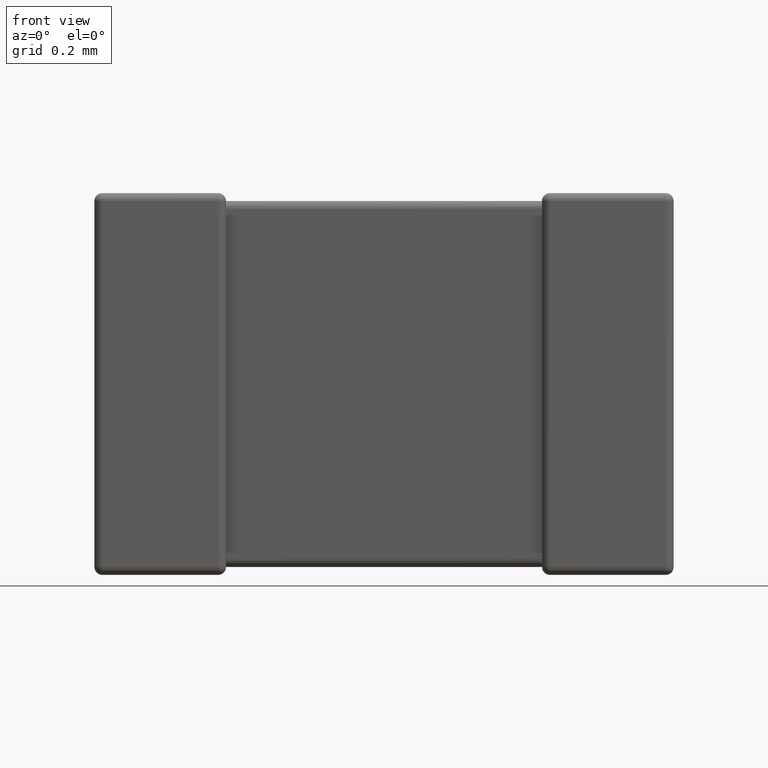
[diagram: clean part render]
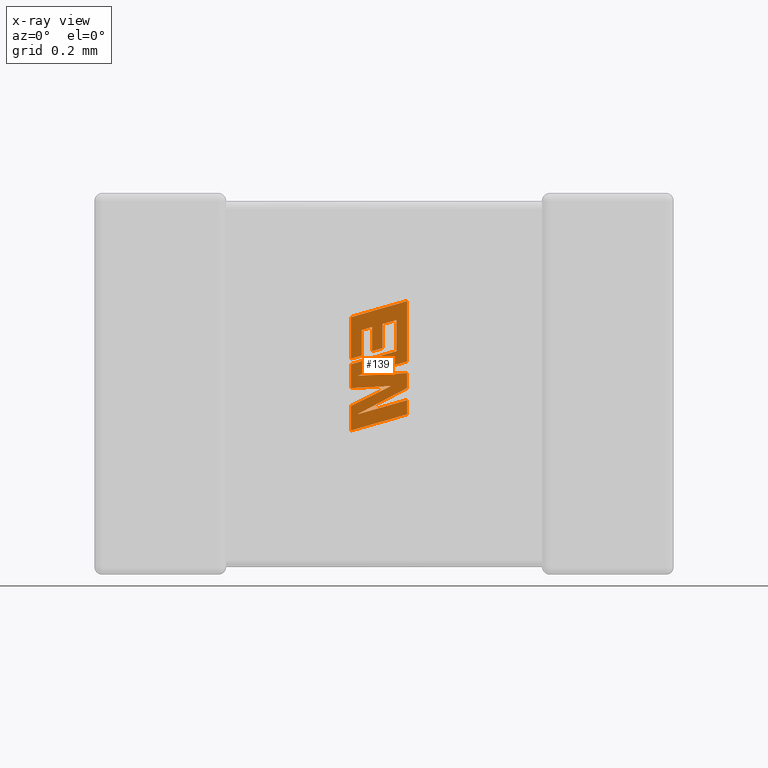
[diagram: x-ray — body ghosted, one internal face saturated and labeled with its STEP entity id]
A machine part, front view, then the same camera in x-ray: the body is ghosted and one INTERNAL B-rep face — a face not visible from any outside direction — is saturated and labeled: STEP entity #139.
In plain terms, the highlighted planar face has unit normal (0, -1, 0).
Its self-contained STEP definition (entity closure, byte-faithful):
#17 = VERTEX_POINT ( 'NONE', #142 ) ;
#21 = ORIENTED_EDGE ( 'NONE', *, *, #585, .F. ) ;
#37 = ORIENTED_EDGE ( 'NONE', *, *, #52, .F. ) ;
#44 = CARTESIAN_POINT ( 'NONE',  ( 0.9748339648551366254, 0.8498400000000000398, -0.8083347367239003267 ) ) ;
#52 = EDGE_CURVE ( 'NONE', #176, #2100, #1925, .T. ) ;
#108 = DIRECTION ( 'NONE',  ( 0.9984327301130250243, 0.000000000000000000, 0.05596501978067342647 ) ) ;
#121 = ORIENTED_EDGE ( 'NONE', *, *, #347, .F. ) ;
#139 = ADVANCED_FACE ( 'NONE', ( #1672 ), #2731, .T. ) ;
#142 = CARTESIAN_POINT ( 'NONE',  ( 1.188000000000003498, 0.8498400000000000398, -0.6836380366425458543 ) ) ;
#148 = VECTOR ( 'NONE', #899, 1000.000000000000000 ) ;
#151 = LINE ( 'NONE', #910, #1230 ) ;
#153 = CARTESIAN_POINT ( 'NONE',  ( 0.9982238819384064987, 0.8498400000000000398, -0.6942755326709606489 ) ) ;
#168 = EDGE_CURVE ( 'NONE', #17, #4355, #1740, .T. ) ;
#176 = VERTEX_POINT ( 'NONE', #2831 ) ;
#196 = CARTESIAN_POINT ( 'NONE',  ( 1.147445032506710483, 0.8498400000000000398, -0.4824401569298813475 ) ) ;
#218 = CARTESIAN_POINT ( 'NONE',  ( 0.9748339648551366254, 0.8498400000000000398, -0.7410023534756597918 ) ) ;
#248 = ORIENTED_EDGE ( 'NONE', *, *, #1088, .F. ) ;
#290 = CARTESIAN_POINT ( 'NONE',  ( -0.2425353559703316564, 0.8498400000000000398, 0.003280988965688323017 ) ) ;
#347 = EDGE_CURVE ( 'NONE', #3118, #1362, #456, .T. ) ;
#373 = DIRECTION ( 'NONE',  ( -0.9610674221107078363, 0.000000000000000000, -0.2763139702539094134 ) ) ;
#394 = CARTESIAN_POINT ( 'NONE',  ( 1.094464961500362321, 0.8498400000000000398, -0.5890160448136516624 ) ) ;
#434 = EDGE_CURVE ( 'NONE', #4543, #3672, #1931, .T. ) ;
#445 = VECTOR ( 'NONE', #3980, 1000.000000000000000 ) ;
#453 = VERTEX_POINT ( 'NONE', #3396 ) ;
#456 = LINE ( 'NONE', #1875, #2500 ) ;
#493 = LINE ( 'NONE', #153, #2367 ) ;
#496 = DIRECTION ( 'NONE',  ( 0.000000000000000000, 0.000000000000000000, -1.000000000000000000 ) ) ;
#562 = CARTESIAN_POINT ( 'NONE',  ( 1.188000000000003498, 0.8498400000000000398, -0.7404661952629607580 ) ) ;
#585 = EDGE_CURVE ( 'NONE', #1754, #4543, #3594, .T. ) ;
#614 = VECTOR ( 'NONE', #683, 1000.000000000000227 ) ;
#683 = DIRECTION ( 'NONE',  ( -0.9615454294334448981, 0.000000000000000000, -0.2746459304917006072 ) ) ;
#690 = VERTEX_POINT ( 'NONE', #4163 ) ;
#741 = EDGE_CURVE ( 'NONE', #937, #1479, #4538, .T. ) ;
#784 = EDGE_CURVE ( 'NONE', #3286, #2207, #3416, .T. ) ;
#847 = ORIENTED_EDGE ( 'NONE', *, *, #168, .F. ) ;
#878 = CARTESIAN_POINT ( 'NONE',  ( 1.015409025108017671, 0.8498400000000000398, -0.5203156576566413394 ) ) ;
#899 = DIRECTION ( 'NONE',  ( 0.000000000000000000, 0.000000000000000000, 1.000000000000000000 ) ) ;
#904 = VECTOR ( 'NONE', #4064, 1000.000000000000000 ) ;
#910 = CARTESIAN_POINT ( 'NONE',  ( 0.9748339648551366254, 0.8498400000000000398, -0.8083347367239003267 ) ) ;
#937 = VERTEX_POINT ( 'NONE', #2442 ) ;
#947 = CARTESIAN_POINT ( 'NONE',  ( 1.188000000000003498, 0.8498400000000000398, -0.7863723184474802341 ) ) ;
#953 = DIRECTION ( 'NONE',  ( 0.000000000000000000, -1.000000000000000000, 0.000000000000000000 ) ) ;
#957 = DIRECTION ( 'NONE',  ( 0.000000000000000000, 0.000000000000000000, -1.000000000000000000 ) ) ;
#1025 = CARTESIAN_POINT ( 'NONE',  ( 1.055057873940854041, 0.8498400000000000398, -0.5087785245035225667 ) ) ;
#1033 = DIRECTION ( 'NONE',  ( -0.9985542843760948362, 0.000000000000000000, -0.05375259206908060416 ) ) ;
#1088 = EDGE_CURVE ( 'NONE', #3672, #3628, #151, .T. ) ;
#1119 = CARTESIAN_POINT ( 'NONE',  ( 0.9748339648551366254, 0.8498400000000000398, -0.4714805285893743925 ) ) ;
#1129 = EDGE_CURVE ( 'NONE', #4355, #1500, #1582, .T. ) ;
#1135 = VECTOR ( 'NONE', #4367, 1000.000000000000000 ) ;
#1138 = CARTESIAN_POINT ( 'NONE',  ( 1.188000000000003498, 0.8498400000000000398, -0.6836380366425458543 ) ) ;
#1143 = ORIENTED_EDGE ( 'NONE', *, *, #4208, .F. ) ;
#1154 = EDGE_CURVE ( 'NONE', #2203, #3588, #3097, .T. ) ;
#1224 = LINE ( 'NONE', #2978, #2592 ) ;
#1230 = VECTOR ( 'NONE', #3790, 1000.000000000000114 ) ;
#1279 = DIRECTION ( 'NONE',  ( 0.000000000000000000, 0.000000000000000000, 1.000000000000000000 ) ) ;
#1287 = VECTOR ( 'NONE', #2573, 1000.000000000000114 ) ;
#1292 = EDGE_CURVE ( 'NONE', #3588, #3768, #3520, .T. ) ;
#1312 = DIRECTION ( 'NONE',  ( 0.9610029908221285888, 0.000000000000000000, 0.2765379750249931101 ) ) ;
#1354 = CARTESIAN_POINT ( 'NONE',  ( 1.188000000000003498, 0.8498400000000000398, -0.8405411030607993217 ) ) ;
#1362 = VERTEX_POINT ( 'NONE', #4643 ) ;
#1372 = CARTESIAN_POINT ( 'NONE',  ( 1.188000000000003498, 0.8498400000000000398, -0.4101399247972486450 ) ) ;
#1379 = VECTOR ( 'NONE', #4113, 1000.000000000000000 ) ;
#1393 = CARTESIAN_POINT ( 'NONE',  ( 1.127122519210145501, 0.8498400000000000398, -0.7328045973124587276 ) ) ;
#1425 = EDGE_CURVE ( 'NONE', #2202, #176, #3214, .T. ) ;
#1475 = ORIENTED_EDGE ( 'NONE', *, *, #2046, .F. ) ;
#1479 = VERTEX_POINT ( 'NONE', #4259 ) ;
#1481 = LINE ( 'NONE', #4291, #1287 ) ;
#1487 = CARTESIAN_POINT ( 'NONE',  ( 1.188000000000003498, 0.8498400000000000398, -0.7863723184474802341 ) ) ;
#1500 = VERTEX_POINT ( 'NONE', #2965 ) ;
#1502 = ORIENTED_EDGE ( 'NONE', *, *, #1695, .F. ) ;
#1582 = LINE ( 'NONE', #562, #1821 ) ;
#1588 = VERTEX_POINT ( 'NONE', #878 ) ;
#1594 = EDGE_CURVE ( 'NONE', #2207, #2202, #4376, .T. ) ;
#1622 = EDGE_CURVE ( 'NONE', #1362, #2203, #3389, .T. ) ;
#1670 = CARTESIAN_POINT ( 'NONE',  ( 0.9748339648551366254, 0.8498400000000000398, -0.6289604516652645971 ) ) ;
#1672 = FACE_OUTER_BOUND ( 'NONE', #3466, .T. ) ;
#1695 = EDGE_CURVE ( 'NONE', #690, #3286, #3860, .T. ) ;
#1740 = LINE ( 'NONE', #1138, #4320 ) ;
#1754 = VERTEX_POINT ( 'NONE', #1354 ) ;
#1818 = DIRECTION ( 'NONE',  ( 0.9611542233438713501, 0.000000000000000000, 0.2760118818968482213 ) ) ;
#1821 = VECTOR ( 'NONE', #1987, 1000.000000000000114 ) ;
#1825 = CARTESIAN_POINT ( 'NONE',  ( 1.188000000000003498, 0.8498400000000000398, -0.6397852638978243078 ) ) ;
#1837 = ORIENTED_EDGE ( 'NONE', *, *, #2812, .F. ) ;
#1875 = CARTESIAN_POINT ( 'NONE',  ( 1.015409025108017671, 0.8498400000000000398, -0.6174362815830839457 ) ) ;
#1894 = EDGE_CURVE ( 'NONE', #453, #17, #493, .T. ) ;
#1925 = LINE ( 'NONE', #2261, #1379 ) ;
#1931 = LINE ( 'NONE', #3023, #1964 ) ;
#1964 = VECTOR ( 'NONE', #2334, 1000.000000000000000 ) ;
#1987 = DIRECTION ( 'NONE',  ( -0.8843386665637650301, 0.000000000000000000, -0.4668459304955136502 ) ) ;
#2005 = DIRECTION ( 'NONE',  ( 0.000000000000000000, 0.000000000000000000, 1.000000000000000000 ) ) ;
#2021 = ORIENTED_EDGE ( 'NONE', *, *, #784, .F. ) ;
#2026 = VECTOR ( 'NONE', #957, 1000.000000000000000 ) ;
#2046 = EDGE_CURVE ( 'NONE', #3628, #937, #4626, .T. ) ;
#2100 = VERTEX_POINT ( 'NONE', #3467 ) ;
#2121 = DIRECTION ( 'NONE',  ( 0.000000000000000000, 0.000000000000000000, -1.000000000000000000 ) ) ;
#2155 = LINE ( 'NONE', #3620, #2192 ) ;
#2175 = CARTESIAN_POINT ( 'NONE',  ( 1.094464961500362321, 0.8498400000000000398, -0.4975356530611448891 ) ) ;
#2189 = VECTOR ( 'NONE', #1279, 1000.000000000000000 ) ;
#2192 = VECTOR ( 'NONE', #1818, 999.9999999999998863 ) ;
#2202 = VERTEX_POINT ( 'NONE', #394 ) ;
#2203 = VERTEX_POINT ( 'NONE', #1119 ) ;
#2207 = VERTEX_POINT ( 'NONE', #2175 ) ;
#2253 = LINE ( 'NONE', #1025, #4071 ) ;
#2259 = ORIENTED_EDGE ( 'NONE', *, *, #1894, .F. ) ;
#2261 = CARTESIAN_POINT ( 'NONE',  ( 1.055057873940854041, 0.8498400000000000398, -0.6002718793269788966 ) ) ;
#2333 = CARTESIAN_POINT ( 'NONE',  ( 1.188000000000003498, 0.8498400000000000398, -0.6018423552029672496 ) ) ;
#2334 = DIRECTION ( 'NONE',  ( 0.000000000000000000, 0.000000000000000000, 1.000000000000000000 ) ) ;
#2367 = VECTOR ( 'NONE', #108, 1000.000000000000227 ) ;
#2378 = ORIENTED_EDGE ( 'NONE', *, *, #1292, .F. ) ;
#2442 = CARTESIAN_POINT ( 'NONE',  ( 0.9748339648551366254, 0.8498400000000000398, -0.7410023534756597918 ) ) ;
#2500 = VECTOR ( 'NONE', #2745, 1000.000000000000000 ) ;
#2527 = CARTESIAN_POINT ( 'NONE',  ( 1.094464961500362321, 0.8498400000000000398, -0.5890160448136516624 ) ) ;
#2573 = DIRECTION ( 'NONE',  ( 0.9610853065513847993, 0.000000000000000000, 0.2762517575166369976 ) ) ;
#2592 = VECTOR ( 'NONE', #496, 1000.000000000000000 ) ;
#2731 = PLANE ( 'NONE',  #3706 ) ;
#2734 = ORIENTED_EDGE ( 'NONE', *, *, #4471, .F. ) ;
#2741 = ORIENTED_EDGE ( 'NONE', *, *, #3872, .F. ) ;
#2745 = DIRECTION ( 'NONE',  ( -0.9619530280415479195, 0.000000000000000000, -0.2732148821746301914 ) ) ;
#2806 = VECTOR ( 'NONE', #1312, 1000.000000000000114 ) ;
#2812 = EDGE_CURVE ( 'NONE', #1588, #3118, #1224, .T. ) ;
#2831 = CARTESIAN_POINT ( 'NONE',  ( 1.055057873940854041, 0.8498400000000000398, -0.6002718793269788966 ) ) ;
#2861 = ORIENTED_EDGE ( 'NONE', *, *, #1622, .F. ) ;
#2916 = LINE ( 'NONE', #1825, #1135 ) ;
#2919 = LINE ( 'NONE', #1487, #445 ) ;
#2941 = ORIENTED_EDGE ( 'NONE', *, *, #1594, .F. ) ;
#2954 = VECTOR ( 'NONE', #4307, 1000.000000000000114 ) ;
#2965 = CARTESIAN_POINT ( 'NONE',  ( 0.9973099854362785788, 0.8498400000000000398, -0.8411322190964737322 ) ) ;
#2966 = VECTOR ( 'NONE', #1033, 1000.000000000000114 ) ;
#2978 = CARTESIAN_POINT ( 'NONE',  ( 1.015409025108017671, 0.8498400000000000398, -0.5203156576566413394 ) ) ;
#3023 = CARTESIAN_POINT ( 'NONE',  ( 0.9748339648551366254, 0.8498400000000000398, -0.9018279099372659147 ) ) ;
#3033 = ORIENTED_EDGE ( 'NONE', *, *, #741, .F. ) ;
#3088 = CARTESIAN_POINT ( 'NONE',  ( 1.147445032506710483, 0.8498400000000000398, -0.6006076228641760162 ) ) ;
#3097 = LINE ( 'NONE', #3398, #2806 ) ;
#3118 = VERTEX_POINT ( 'NONE', #3174 ) ;
#3153 = ORIENTED_EDGE ( 'NONE', *, *, #434, .F. ) ;
#3174 = CARTESIAN_POINT ( 'NONE',  ( 1.015409025108017671, 0.8498400000000000398, -0.6174362815830839457 ) ) ;
#3212 = ORIENTED_EDGE ( 'NONE', *, *, #1129, .F. ) ;
#3214 = LINE ( 'NONE', #2527, #614 ) ;
#3271 = ORIENTED_EDGE ( 'NONE', *, *, #1154, .F. ) ;
#3286 = VERTEX_POINT ( 'NONE', #4402 ) ;
#3363 = VERTEX_POINT ( 'NONE', #947 ) ;
#3389 = LINE ( 'NONE', #1670, #2189 ) ;
#3396 = CARTESIAN_POINT ( 'NONE',  ( 0.9982238819384064987, 0.8498400000000000398, -0.6942755326709606489 ) ) ;
#3398 = CARTESIAN_POINT ( 'NONE',  ( 0.9748339648551366254, 0.8498400000000000398, -0.4714805285893743925 ) ) ;
#3407 = CARTESIAN_POINT ( 'NONE',  ( 0.9748339648551366254, 0.8498400000000000398, -0.9018279099372659147 ) ) ;
#3416 = LINE ( 'NONE', #196, #2954 ) ;
#3425 = EDGE_CURVE ( 'NONE', #3363, #1754, #2919, .T. ) ;
#3466 = EDGE_LOOP ( 'NONE', ( #3153, #21, #4317, #4235, #3212, #847, #2259, #2741, #2378, #3271, #2861, #121, #1837, #2734, #37, #4057, #2941, #2021, #1502, #1143, #3033, #1475, #248 ) ) ;
#3467 = CARTESIAN_POINT ( 'NONE',  ( 1.055057873940854041, 0.8498400000000000398, -0.5087785245035225667 ) ) ;
#3482 = CARTESIAN_POINT ( 'NONE',  ( 1.188000000000003498, 0.8498400000000000398, -0.6397852638978243078 ) ) ;
#3488 = DIRECTION ( 'NONE',  ( 0.000000000000000000, 0.000000000000000000, -1.000000000000000000 ) ) ;
#3495 = CARTESIAN_POINT ( 'NONE',  ( 1.188000000000003498, 0.8498400000000000398, -0.8405411030607993217 ) ) ;
#3520 = LINE ( 'NONE', #2333, #2026 ) ;
#3588 = VERTEX_POINT ( 'NONE', #1372 ) ;
#3594 = LINE ( 'NONE', #3495, #4090 ) ;
#3620 = CARTESIAN_POINT ( 'NONE',  ( 0.9973099854362785788, 0.8498400000000000398, -0.8411322190964737322 ) ) ;
#3628 = VERTEX_POINT ( 'NONE', #3901 ) ;
#3672 = VERTEX_POINT ( 'NONE', #44 ) ;
#3706 = AXIS2_PLACEMENT_3D ( 'NONE', #290, #953, #3488 ) ;
#3756 = CARTESIAN_POINT ( 'NONE',  ( 1.094464961500362321, 0.8498400000000000398, -0.4975356530611448891 ) ) ;
#3768 = VERTEX_POINT ( 'NONE', #3482 ) ;
#3790 = DIRECTION ( 'NONE',  ( 0.8958676361826827250, 0.000000000000000000, 0.4443210308329466063 ) ) ;
#3860 = LINE ( 'NONE', #3088, #148 ) ;
#3872 = EDGE_CURVE ( 'NONE', #3768, #453, #2916, .T. ) ;
#3901 = CARTESIAN_POINT ( 'NONE',  ( 1.127122519210145501, 0.8498400000000000398, -0.7328045973124587276 ) ) ;
#3980 = DIRECTION ( 'NONE',  ( 0.000000000000000000, 0.000000000000000000, -1.000000000000000000 ) ) ;
#4057 = ORIENTED_EDGE ( 'NONE', *, *, #1425, .F. ) ;
#4064 = DIRECTION ( 'NONE',  ( 0.000000000000000000, 0.000000000000000000, -1.000000000000000000 ) ) ;
#4071 = VECTOR ( 'NONE', #4640, 1000.000000000000227 ) ;
#4090 = VECTOR ( 'NONE', #373, 1000.000000000000227 ) ;
#4113 = DIRECTION ( 'NONE',  ( 0.000000000000000000, 0.000000000000000000, 1.000000000000000000 ) ) ;
#4163 = CARTESIAN_POINT ( 'NONE',  ( 1.147445032506710483, 0.8498400000000000398, -0.6006076228641760162 ) ) ;
#4179 = EDGE_CURVE ( 'NONE', #1500, #3363, #2155, .T. ) ;
#4208 = EDGE_CURVE ( 'NONE', #1479, #690, #1481, .T. ) ;
#4235 = ORIENTED_EDGE ( 'NONE', *, *, #4179, .F. ) ;
#4259 = CARTESIAN_POINT ( 'NONE',  ( 0.9748339648551366254, 0.8498400000000000398, -0.6502224806510179533 ) ) ;
#4291 = CARTESIAN_POINT ( 'NONE',  ( 0.9748339648551366254, 0.8498400000000000398, -0.6502224806510179533 ) ) ;
#4307 = DIRECTION ( 'NONE',  ( -0.9617234872620624708, 0.000000000000000000, -0.2740217765953967821 ) ) ;
#4317 = ORIENTED_EDGE ( 'NONE', *, *, #3425, .F. ) ;
#4320 = VECTOR ( 'NONE', #2121, 1000.000000000000000 ) ;
#4355 = VERTEX_POINT ( 'NONE', #4616 ) ;
#4367 = DIRECTION ( 'NONE',  ( -0.9611638845408968512, 0.000000000000000000, -0.2759782365590690567 ) ) ;
#4376 = LINE ( 'NONE', #3756, #904 ) ;
#4402 = CARTESIAN_POINT ( 'NONE',  ( 1.147445032506710483, 0.8498400000000000398, -0.4824401569298813475 ) ) ;
#4471 = EDGE_CURVE ( 'NONE', #2100, #1588, #2253, .T. ) ;
#4538 = LINE ( 'NONE', #218, #4550 ) ;
#4543 = VERTEX_POINT ( 'NONE', #3407 ) ;
#4550 = VECTOR ( 'NONE', #2005, 1000.000000000000000 ) ;
#4616 = CARTESIAN_POINT ( 'NONE',  ( 1.188000000000003498, 0.8498400000000000398, -0.7404661952629607580 ) ) ;
#4626 = LINE ( 'NONE', #1393, #2966 ) ;
#4640 = DIRECTION ( 'NONE',  ( -0.9601763114327565019, 0.000000000000000000, -0.2793947940878393488 ) ) ;
#4643 = CARTESIAN_POINT ( 'NONE',  ( 0.9748339648551366254, 0.8498400000000000398, -0.6289604516652645971 ) ) ;